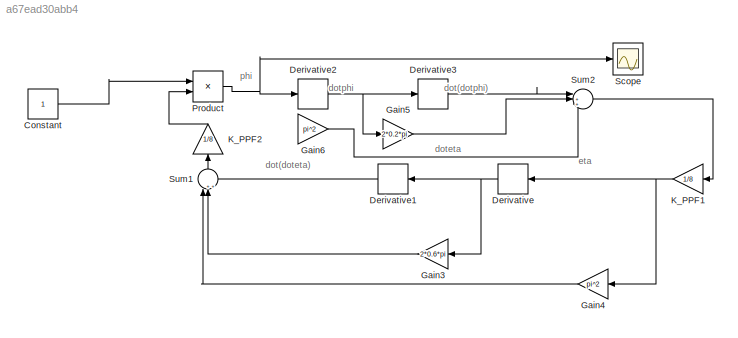
MODEL slx_a67ead30abb4
KIND model
CONFIG AbsTol = auto
CONFIG EnableMultiTasking = off
CONFIG FixedStep = auto
CONFIG MaxStep = auto
CONFIG MinStep = auto
CONFIG RelTol = 1e-3
CONFIG SampleTimeConstraint = Unconstrained
CONFIG SolverName = VariableStepAuto
CONFIG StartTime = 0.0
CONFIG StopTime = 10.0
BLOCK [Constant] Constant
BLOCK [Derivative] Derivative
  NameLocation = top
BLOCK [Derivative] Derivative1
  NameLocation = top
BLOCK [Derivative] Derivative2
BLOCK [Derivative] Derivative3
BLOCK [Gain] Gain3
  Gain = 2*0.6*pi
  NameLocation = top
BLOCK [Gain] Gain4
  Gain = pi^2
  NameLocation = top
BLOCK [Gain] Gain5
  Gain = 2*0.2*pi
BLOCK [Gain] Gain6
  Gain = pi^2
BLOCK [Gain] K_PPF1
  Gain = 1/8
  NameLocation = top
BLOCK [Gain] K_PPF2
  Gain = 1/8
  NameLocation = right
BLOCK [Product] Product
  Ports = [2, 1]
BLOCK [Scope] Scope
  Floating = off
  NumInputPorts = 1
  Ports = [1]
  ScopeSpecificationString = Simulink.scopes.TimeScopeBlockCfg('CurrentConfiguration', extmgr.ConfigurationSet(extmgr.Configuration('Core','General UI',true),extmgr.Configuration('Core','Source UI',true),extmgr.Configuration('Sources','WiredSimulink',true),extmgr.Configuration('Visuals','Time Domain',true,'SerializedDisplays',{struct('MinYLimReal','-1.00000','MaxYLimReal','1.00000','YLabelReal','','MinYLimMag','0.00000','MaxY...<+1421ch>
BLOCK [Sum] Sum1
  Inputs = |+++
  NameLocation = right
  Ports = [3, 1]
BLOCK [Sum] Sum2
  Inputs = |+++
  Ports = [3, 1]
ANNOTATION (root): dot(doteta)
ANNOTATION (root): dot(dotphi)
ANNOTATION (root): doteta
ANNOTATION (root): dotphi
ANNOTATION (root): eta
ANNOTATION (root): phi
LINE Constant:1 -> Product:1
LINE Derivative1:1 -> Sum1:3
NET Derivative2:1 -> Derivative3:1, Gain5:1
LINE Derivative3:1 -> Sum2:1
NET Derivative:1 -> Derivative1:1, Gain3:1
LINE Gain3:1 -> Sum1:2
LINE Gain4:1 -> Sum1:1
LINE Gain5:1 -> Sum2:2
LINE Gain6:1 -> Sum2:3
NET K_PPF1:1 -> Derivative:1, Gain4:1
LINE K_PPF2:1 -> Product:2
NET Product:1 -> Derivative2:1, Scope:1
LINE Sum1:1 -> K_PPF2:1
LINE Sum2:1 -> K_PPF1:1
note: NET lines group one-source signal fan-out (src -> all destinations, sorted); 1:1 wires keep LINE
